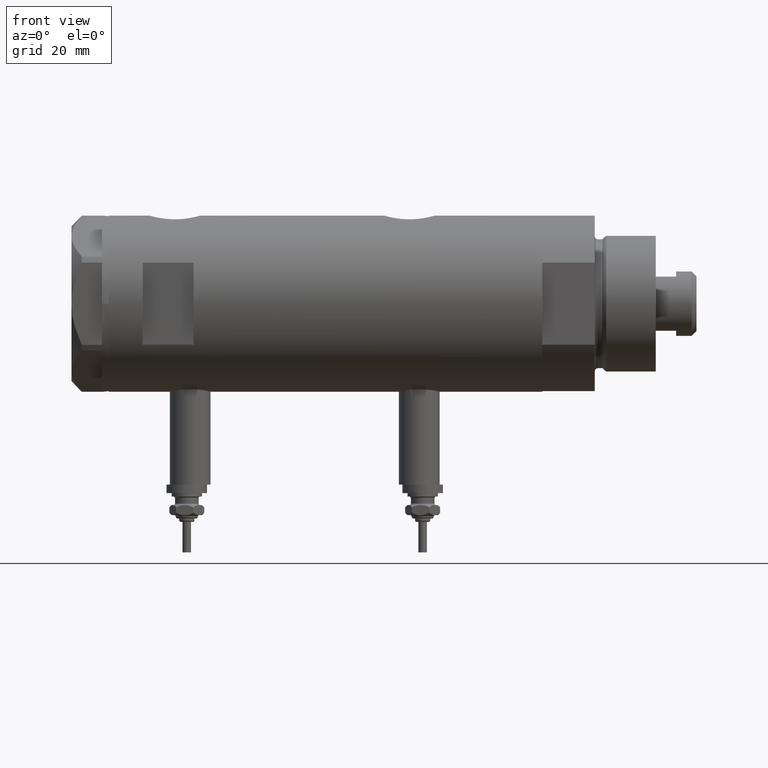
[diagram: clean part render]
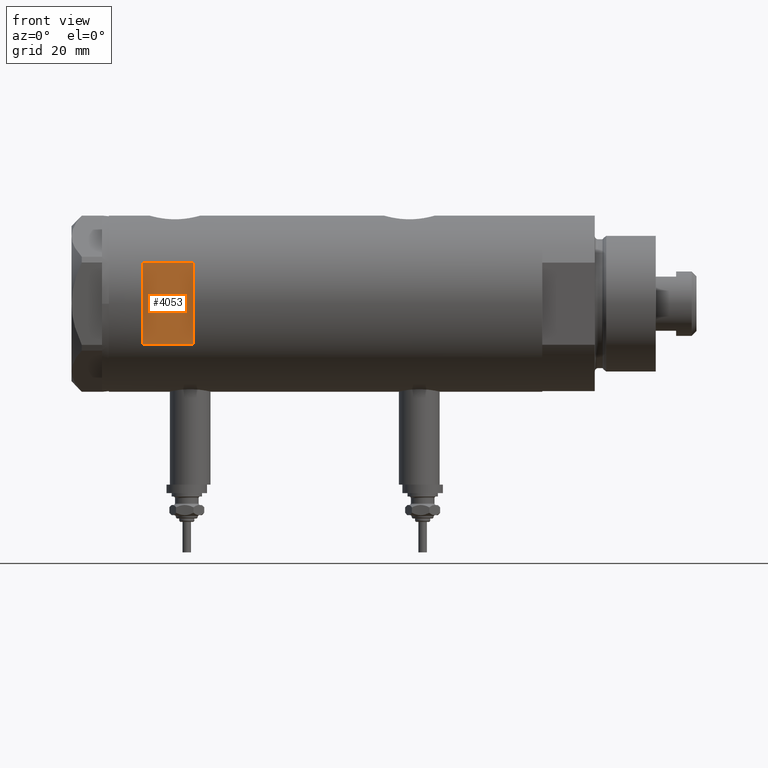
[diagram: same view with one face highlighted and labeled with its STEP entity id]
A machine part, front view. The second image highlights one B-rep face of the part: STEP entity #4053.
In plain terms, the highlighted planar face has unit normal (-0, 1, 0).
Its self-contained STEP definition (entity closure, byte-faithful):
#150 = DIRECTION ( 'NONE',  ( 0.000000000000000000, 0.000000000000000000, 1.000000000000000000 ) ) ;
#387 = DIRECTION ( 'NONE',  ( 1.000000000000000000, -0.000000000000000000, -0.000000000000000000 ) ) ;
#396 = DIRECTION ( 'NONE',  ( 1.000000000000000000, -0.000000000000000000, -0.000000000000000000 ) ) ;
#480 = ORIENTED_EDGE ( 'NONE', *, *, #5196, .T. ) ;
#581 = DIRECTION ( 'NONE',  ( 0.000000000000000000, 1.000000000000000000, 0.000000000000000000 ) ) ;
#659 = CARTESIAN_POINT ( 'NONE',  ( -12.12435565298214080, -23.00000000000000355, 53.94999999999999574 ) ) ;
#790 = CARTESIAN_POINT ( 'NONE',  ( -26.00000000000000355, -23.00000000000000355, 38.94999999999999574 ) ) ;
#954 = VECTOR ( 'NONE', #396, 1000.000000000000000 ) ;
#975 = ORIENTED_EDGE ( 'NONE', *, *, #4693, .T. ) ;
#1375 = VERTEX_POINT ( 'NONE', #1956 ) ;
#1379 = VECTOR ( 'NONE', #5052, 1000.000000000000000 ) ;
#1481 = VECTOR ( 'NONE', #387, 1000.000000000000000 ) ;
#1667 = PLANE ( 'NONE',  #3196 ) ;
#1684 = CARTESIAN_POINT ( 'NONE',  ( 12.12435565298214080, -23.00000000000000355, 53.94999999999999574 ) ) ;
#1762 = CARTESIAN_POINT ( 'NONE',  ( -26.00000000000000355, -23.00000000000000355, 53.94999999999999574 ) ) ;
#1775 = VECTOR ( 'NONE', #150, 1000.000000000000000 ) ;
#1942 = CARTESIAN_POINT ( 'NONE',  ( -12.12435565298214080, -23.00000000000000355, 38.94999999999999574 ) ) ;
#1956 = CARTESIAN_POINT ( 'NONE',  ( 12.12435565298214080, -23.00000000000000355, 38.94999999999999574 ) ) ;
#1991 = VERTEX_POINT ( 'NONE', #659 ) ;
#2506 = ORIENTED_EDGE ( 'NONE', *, *, #5350, .T. ) ;
#2520 = CARTESIAN_POINT ( 'NONE',  ( 12.12435565298214080, -23.00000000000000355, -63.95000000000000995 ) ) ;
#2550 = VERTEX_POINT ( 'NONE', #1942 ) ;
#3005 = FACE_OUTER_BOUND ( 'NONE', #5234, .T. ) ;
#3034 = CARTESIAN_POINT ( 'NONE',  ( -26.00000000000000355, -23.00000000000000355, 53.94999999999999574 ) ) ;
#3196 = AXIS2_PLACEMENT_3D ( 'NONE', #3034, #581, #4072 ) ;
#4053 = ADVANCED_FACE ( 'NONE', ( #3005 ), #1667, .F. ) ;
#4072 = DIRECTION ( 'NONE',  ( 0.000000000000000000, -0.000000000000000000, 1.000000000000000000 ) ) ;
#4280 = LINE ( 'NONE', #790, #954 ) ;
#4693 = EDGE_CURVE ( 'NONE', #2550, #1375, #4280, .T. ) ;
#5052 = DIRECTION ( 'NONE',  ( -0.000000000000000000, -0.000000000000000000, -1.000000000000000000 ) ) ;
#5080 = CARTESIAN_POINT ( 'NONE',  ( -12.12435565298214080, -23.00000000000000355, -63.95000000000000995 ) ) ;
#5098 = ORIENTED_EDGE ( 'NONE', *, *, #5605, .F. ) ;
#5196 = EDGE_CURVE ( 'NONE', #1375, #5436, #5983, .T. ) ;
#5234 = EDGE_LOOP ( 'NONE', ( #2506, #975, #480, #5098 ) ) ;
#5350 = EDGE_CURVE ( 'NONE', #1991, #2550, #6074, .T. ) ;
#5436 = VERTEX_POINT ( 'NONE', #1684 ) ;
#5605 = EDGE_CURVE ( 'NONE', #1991, #5436, #6155, .T. ) ;
#5983 = LINE ( 'NONE', #2520, #1775 ) ;
#6074 = LINE ( 'NONE', #5080, #1379 ) ;
#6155 = LINE ( 'NONE', #1762, #1481 ) ;